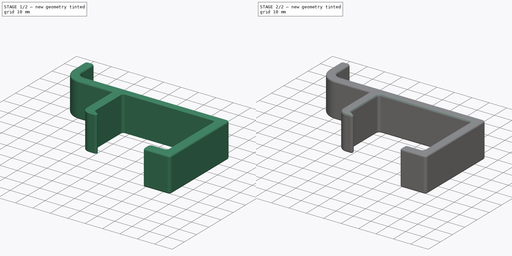
[diagram: build sequence overview — one tinted view per stage of 2, left to right]
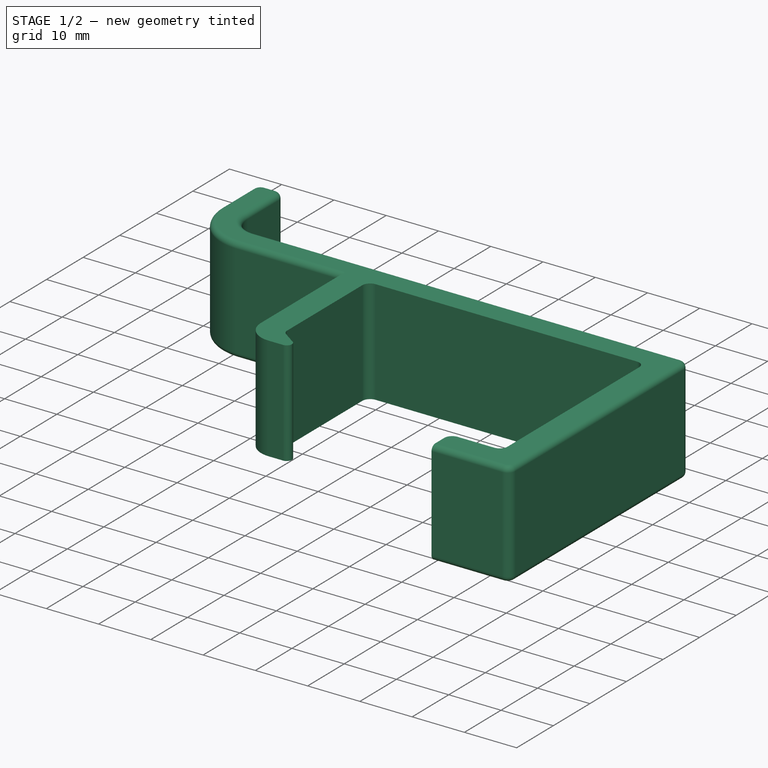
[diagram: stage 1 of 2 — iso view after this stage's code; geometry added in this stage tinted green]
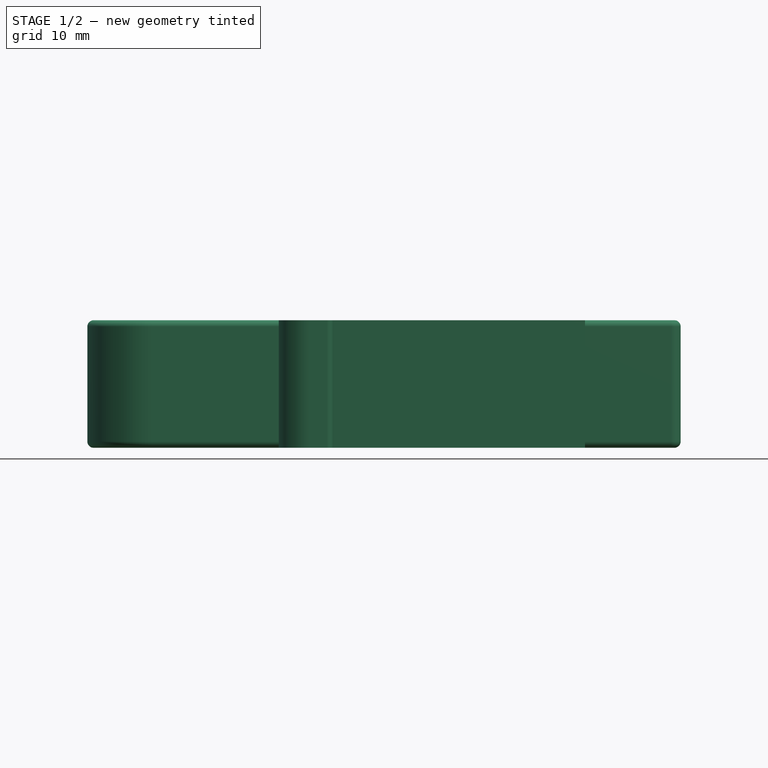
[diagram: stage 1 of 2 — front view after this stage's code; geometry added in this stage tinted green]
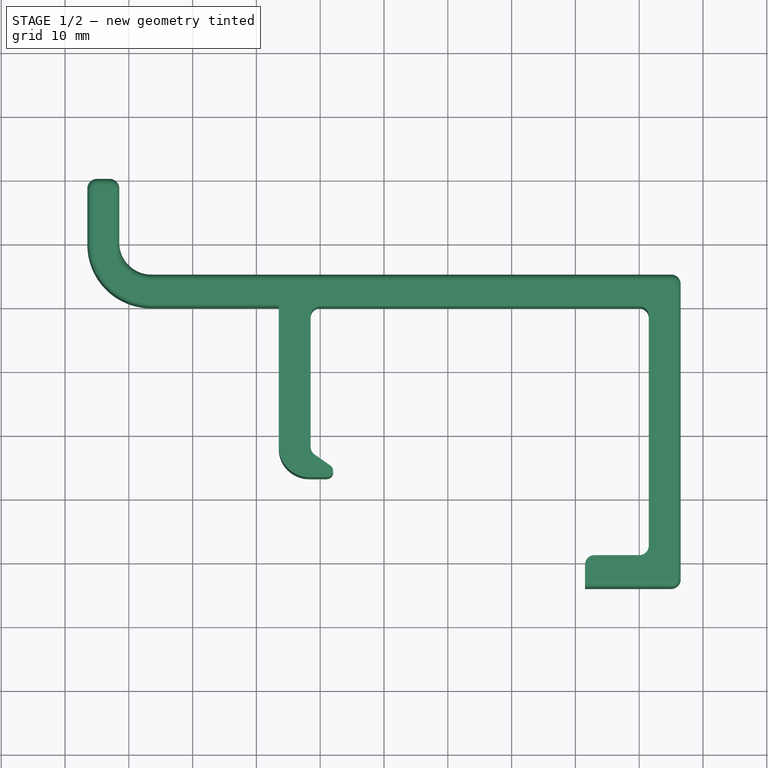
[diagram: stage 1 of 2 — top view after this stage's code; geometry added in this stage tinted green]
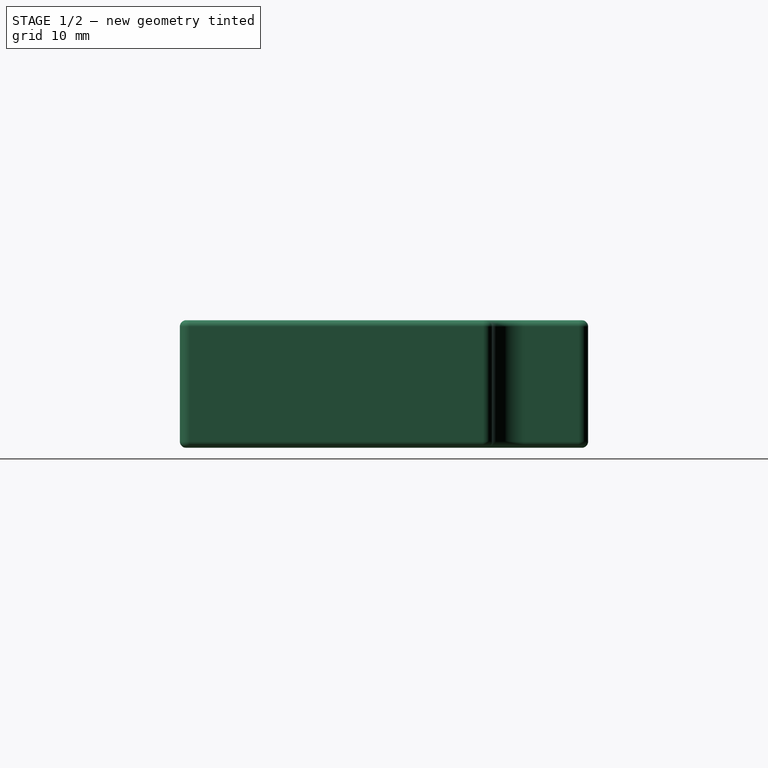
[diagram: stage 1 of 2 — right view after this stage's code; geometry added in this stage tinted green]
FCSTD DOCUMENT  (FreeCAD 0.20R25352 (Git))
Label: bed headboard hook
License: All rights reserved
LicenseURL: http://en.wikipedia.org/wiki/All_rights_reserved
objects: PartDesign::Fillet×2, Sketcher::SketchObject×1, PartDesign::Pad×1, PartDesign::Body×1
note: 8 computed .brp shape members not serialized (recipe doc carries the construction recipe); baked Part::Feature solids carry a one-line shape summary decoded from their .brp

FEATURE [Sketcher::SketchObject] Sketch
  FullyConstrained = true
  MapMode = 5
  Support = -> [XY_Plane]
  sketch-geometry (28):
    g0: LineSegment StartX=-7 StartY=-39 StartZ=0 EndX=0 EndY=-39 EndZ=0
    g1: LineSegment StartX=1.5 StartY=-37.5 StartZ=0 EndX=1.5 EndY=-1.5 EndZ=0
    g2: LineSegment StartX=-51.5 StartY=-1.5 StartZ=0 EndX=-51.5 EndY=-22 EndZ=0
    g3: LineSegment StartX=-56.5 StartY=-22 StartZ=0 EndX=-56.5 EndY=0 EndZ=0
    g4: LineSegment StartX=6.5 StartY=3.5 StartZ=0 EndX=6.5 EndY=-42.5 EndZ=0
    g5: LineSegment StartX=5 StartY=-44 StartZ=0 EndX=-8.5 EndY=-44 EndZ=0
    g6: LineSegment StartX=-8.5 StartY=-44 StartZ=0 EndX=-8.5 EndY=-40.5 EndZ=0
    g7: LineSegment StartX=-50 StartY=0 StartZ=0 EndX=0 EndY=0 EndZ=0
    g8: LineSegment StartX=5 StartY=5 StartZ=0 EndX=-76.5 EndY=5 EndZ=0
    g9: LineSegment StartX=-81.5 StartY=10 StartZ=0 EndX=-81.5 EndY=18.5 EndZ=0
    g10: LineSegment StartX=-83 StartY=20 StartZ=0 EndX=-85 EndY=20 EndZ=0
    g11: LineSegment StartX=-86.5 StartY=18.5 StartZ=0 EndX=-86.5 EndY=10 EndZ=0
    g12: LineSegment StartX=-76.5 StartY=0 StartZ=0 EndX=-56.5 EndY=0 EndZ=0
    g13: ArcOfCircle CenterX=-2e-16 CenterY=-1.5 CenterZ=0 NormalX=0 NormalY=0 NormalZ=1 AngleXU=0 Radius=1.5 StartAngle=0 EndAngle=1.5708
    g14: ArcOfCircle CenterX=5 CenterY=3.5 CenterZ=0 NormalX=0 NormalY=0 NormalZ=1 AngleXU=0 Radius=1.5 StartAngle=0 EndAngle=1.5708
    g15: ArcOfCircle CenterX=5 CenterY=-42.5 CenterZ=0 NormalX=0 NormalY=0 NormalZ=1 AngleXU=0 Radius=1.5 StartAngle=4.71239 EndAngle=6.28319
    g16: ArcOfCircle CenterX=-7 CenterY=-40.5 CenterZ=0 NormalX=0 NormalY=0 NormalZ=1 AngleXU=0 Radius=1.5 StartAngle=1.5708 EndAngle=3.14159
    g17: ArcOfCircle CenterX=-50 CenterY=-1.5 CenterZ=0 NormalX=0 NormalY=0 NormalZ=1 AngleXU=0 Radius=1.5 StartAngle=1.5708 EndAngle=3.14159
    g18: ArcOfCircle CenterX=-76.5 CenterY=10 CenterZ=0 NormalX=0 NormalY=0 NormalZ=1 AngleXU=0 Radius=10 StartAngle=3.14159 EndAngle=4.71239
    g19: ArcOfCircle CenterX=-85 CenterY=18.5 CenterZ=0 NormalX=0 NormalY=0 NormalZ=1 AngleXU=0 Radius=1.5 StartAngle=1.5708 EndAngle=3.14159
    g20: ArcOfCircle CenterX=-83 CenterY=18.5 CenterZ=0 NormalX=0 NormalY=0 NormalZ=1 AngleXU=0 Radius=1.5 StartAngle=-9e-16 EndAngle=1.5708
    g21: ArcOfCircle CenterX=-76.5 CenterY=10 CenterZ=0 NormalX=0 NormalY=0 NormalZ=1 AngleXU=0 Radius=5 StartAngle=3.14159 EndAngle=4.71239
    g22: ArcOfCircle CenterX=-2e-16 CenterY=-37.5 CenterZ=0 NormalX=0 NormalY=0 NormalZ=1 AngleXU=0 Radius=1.5 StartAngle=4.71239 EndAngle=6.28319
    g23: LineSegment StartX=-50.8604 StartY=-23.2287 StartZ=0 EndX=-48.4029 EndY=-24.9495 EndZ=0
    g24: LineSegment StartX=-48.9765 StartY=-26.7686 StartZ=0 EndX=-51.7314 EndY=-26.7686 EndZ=0
    g25: ArcOfCircle CenterX=-48.9765 CenterY=-25.7686 CenterZ=0 NormalX=0 NormalY=0 NormalZ=1 AngleXU=0 Radius=1 StartAngle=4.71239 EndAngle=7.24312
    g26: ArcOfCircle CenterX=-50 CenterY=-22 CenterZ=0 NormalX=0 NormalY=0 NormalZ=1 AngleXU=0 Radius=1.5 StartAngle=3.14159 EndAngle=4.10152
    g27: ArcOfCircle CenterX=-51.7314 CenterY=-22 CenterZ=0 NormalX=0 NormalY=0 NormalZ=1 AngleXU=0 Radius=4.76861 StartAngle=3.14159 EndAngle=4.71239
  constraints (70):
    c: Horizontal(g0)
    c: Vertical(g3)
    c: Vertical(g4)
    c: Horizontal(g5)
    c: Coincident(g5,g6)
    c: Vertical(g6)
    c: Vertical(g1)
    c: Vertical(g2)
    c: Horizontal(g7)
    c: Horizontal(g10)
    c: Coincident(g12,g3)
    c: Horizontal(g8)
    c: Horizontal(g12)
    c: Vertical(g11)
    c: Vertical(g9)
    c: PointOnObject(g3,g-1)
    c: Tangent(g1,g13) = -1.5708
    c: Tangent(g7,g13) = 1.5708
    c: Tangent(g8,g14) = -1.5708
    c: Tangent(g4,g14) = 1.5708
    c: Tangent(g4,g15) = 1.5708
    c: Tangent(g5,g15) = 1.5708
    c: Tangent(g0,g16) = 1.5708
    c: Tangent(g6,g16) = 1.5708
    c: Tangent(g7,g17) = 1.5708
    c: Tangent(g2,g17) = -1.5708
    c: Tangent(g12,g18) = -1.5708
    c: Tangent(g11,g18) = -1.5708
    c: Tangent(g11,g19) = -1.5708
    c: Tangent(g10,g19) = -1.5708
    c: Tangent(g10,g20) = -1.5708
    c: Tangent(g9,g20) = -1.5708
    c: Tangent(g9,g21) = 1.5708
    c: Tangent(g8,g21) = 1.5708
    c: Tangent(g0,g22) = -1.5708
    c: Tangent(g1,g22) = -1.5708
    c: DistanceY(g0,g7) = 39
    c: DistanceX(g6,g1) = 10
    c: DistanceX(g11,g9) = 5
    c: DistanceY(g8,g10) = 15
    c: DistanceY(g12,g8) = 5
    c: Diameter(g19) = 3
    c: DistanceX(g3,g2) = 5
    c: DistanceY(g5,g0) = 5
    c: DistanceX(g1,g4) = 5
    c: Coincident(g-1,g7)
    c: DistanceX(g9,g2) = 30
    c: DistanceX(g2,g1) = 53
    c: Horizontal(g24)
    c: Tangent(g23,g25) = 1.5708
    c: Tangent(g24,g25) = 1.5708
    c: Angle(g23,g2) = 2.18166
    c: Diameter(g25) = 2
    c: Tangent(g2,g26) = -1.5708
    c: Tangent(g23,g26) = -1.5708
    c: DistanceY(g26,g7) = 22
    c: Tangent(g27,g3) = 1.5708
    c: Distance(g23) = 3
    c: Diameter(g26) = 3
    c: Horizontal(g3,g2)
    c: Tangent(g27,g24) = 1.5708
    c: Diameter(g18) = 20
    c: Vertical(g8,g12)
    c: Equal(g19,g20)
    c: Equal(g20,g17)
    c: Equal(g17,g14)
    c: Equal(g14,g13)
    c: Equal(g13,g22)
    c: Equal(g22,g15)
    c: Equal(g15,g16)
FEATURE [PartDesign::Pad] Pad
  Direction = (0,0,1)
  Length = 20
  Length2 = 100
  Profile = -> Sketch
  Type = 0
FEATURE [PartDesign::Fillet] Fillet
  Base = -> Pad [Face27]
  BaseFeature = -> Pad
  Radius = 1
  SupportTransform = false
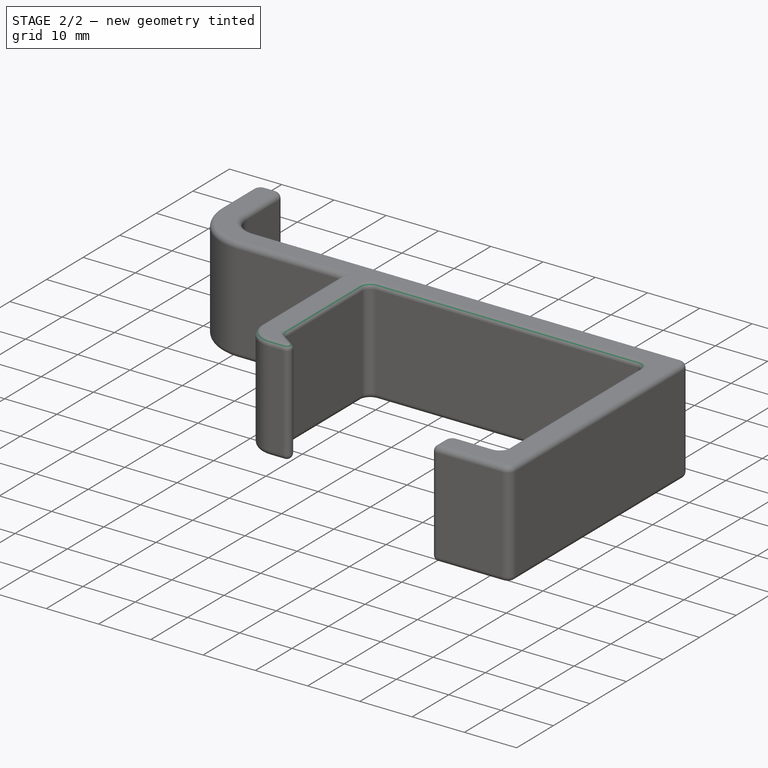
[diagram: stage 2 of 2 — iso view after this stage's code; geometry added in this stage tinted green]
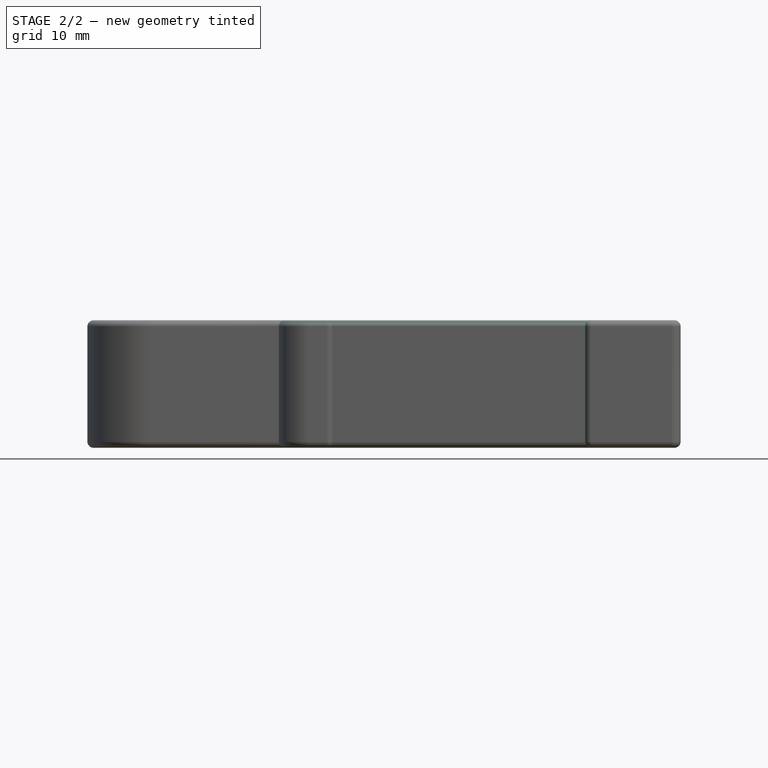
[diagram: stage 2 of 2 — front view after this stage's code; geometry added in this stage tinted green]
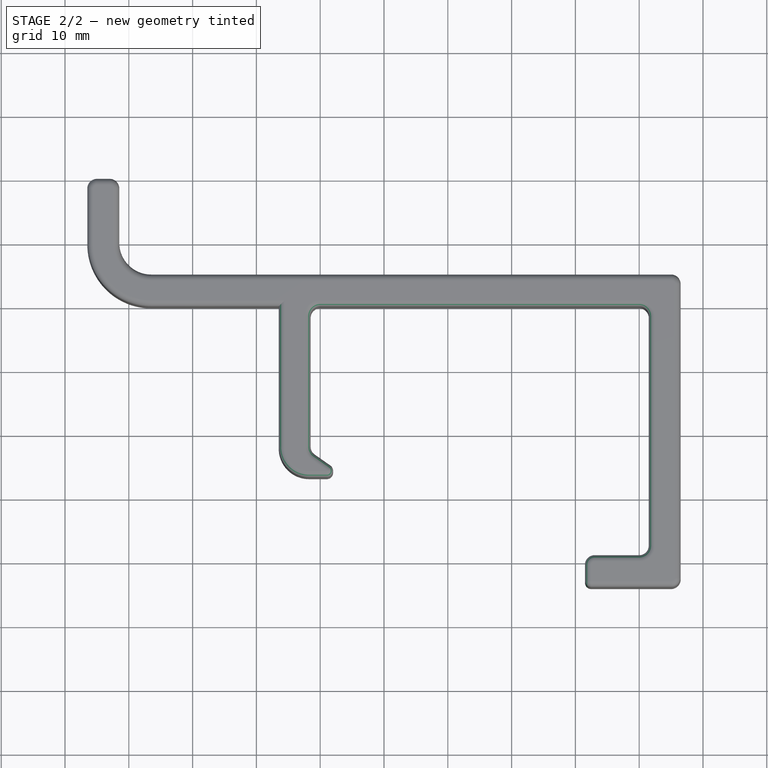
[diagram: stage 2 of 2 — top view after this stage's code; geometry added in this stage tinted green]
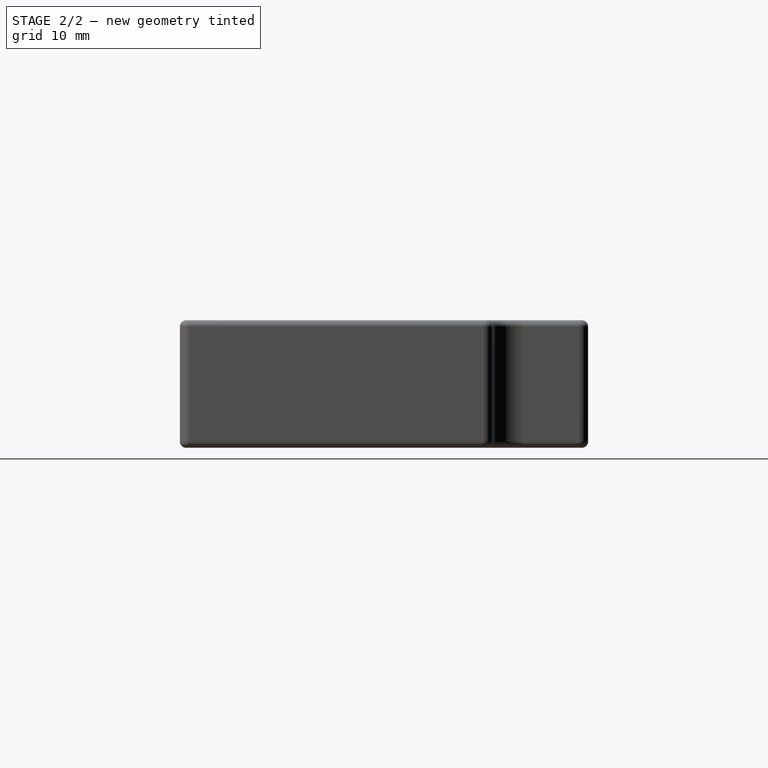
[diagram: stage 2 of 2 — right view after this stage's code; geometry added in this stage tinted green]
FEATURE [PartDesign::Fillet] Fillet001
  Base = -> Fillet [Face4]
  BaseFeature = -> Fillet
  Radius = 1
  SupportTransform = false
FEATURE [PartDesign::Body] Body
  Group = -> [Sketch,Pad,Fillet,Fillet001]
  Origin = -> Origin
  Tip = -> Fillet001
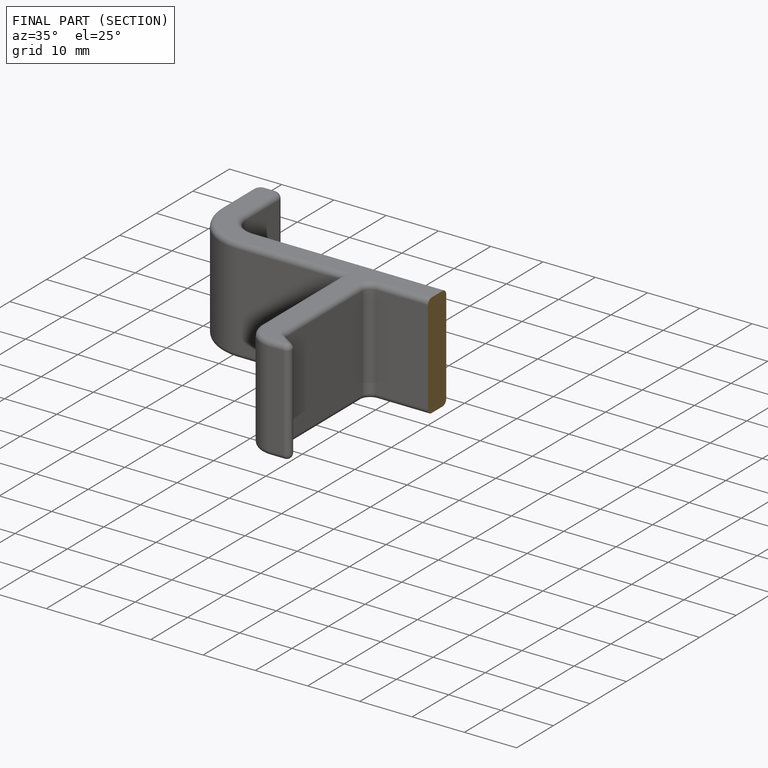
[diagram: finished part — half-section view (interior)]
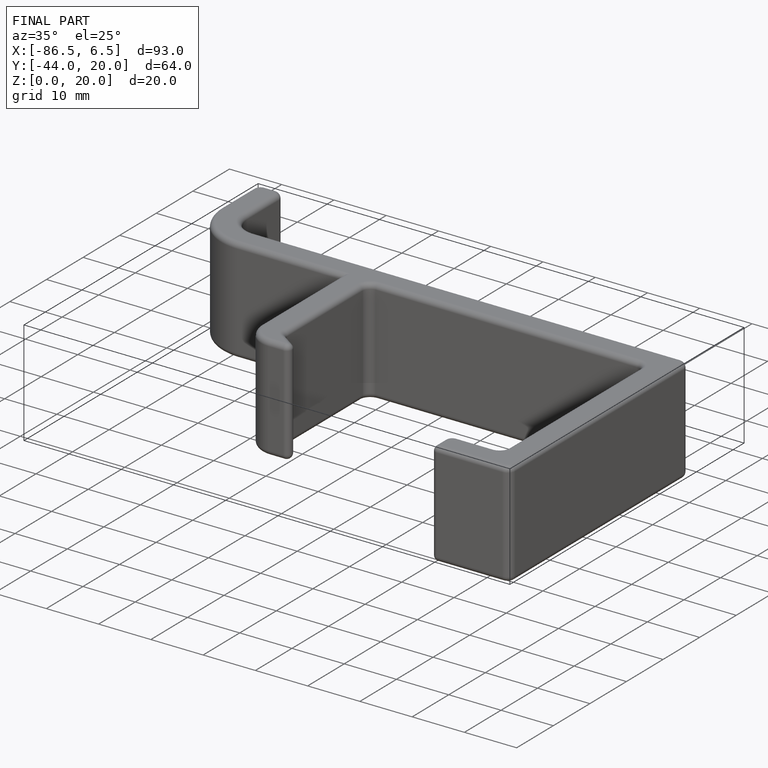
[diagram: finished part — iso view with bounding-box wireframe]
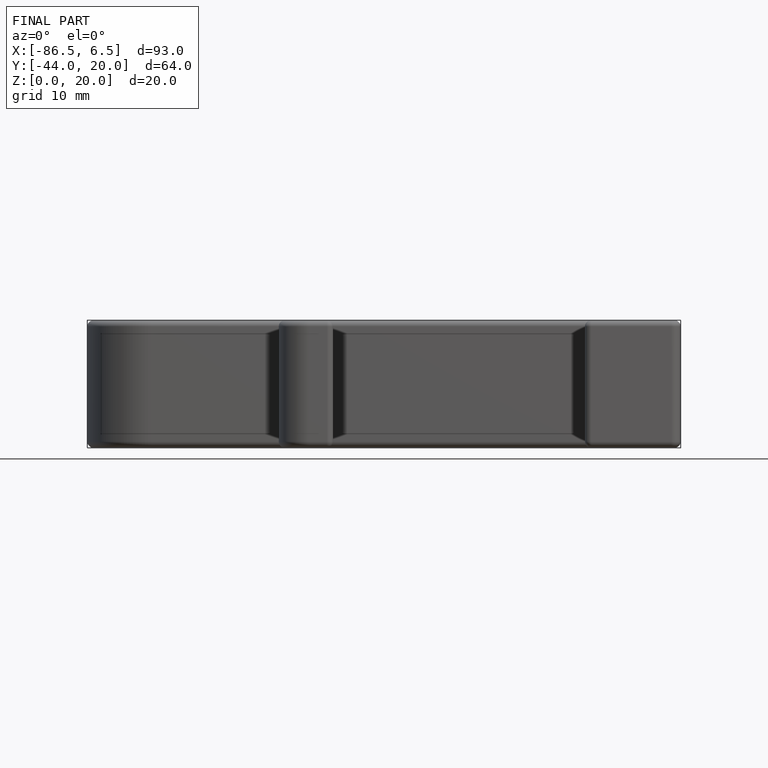
[diagram: finished part — front view with bounding-box wireframe]
